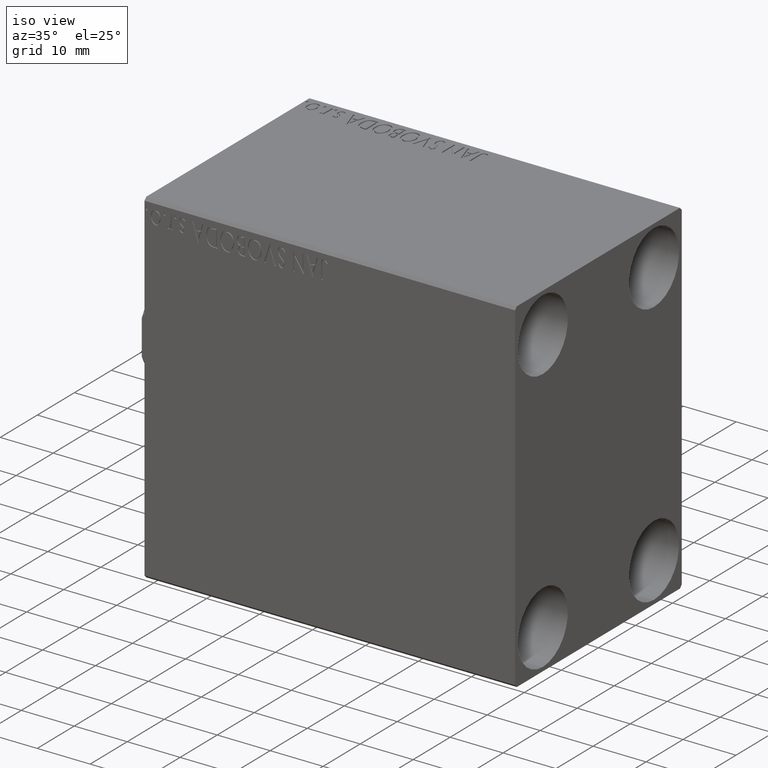
[diagram: clean part render]
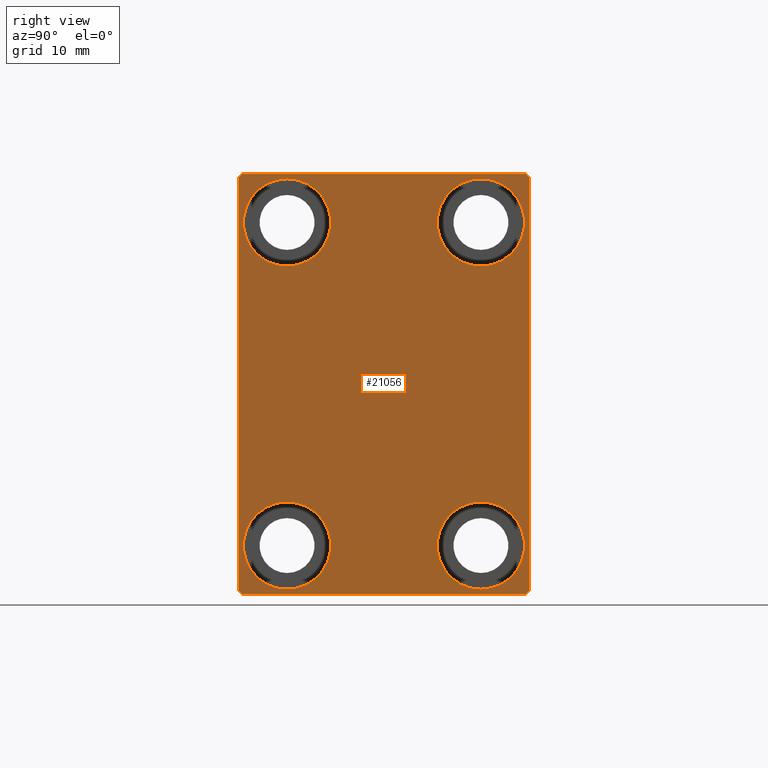
[diagram: tour spotlight — one face highlighted and labeled with its STEP entity id]
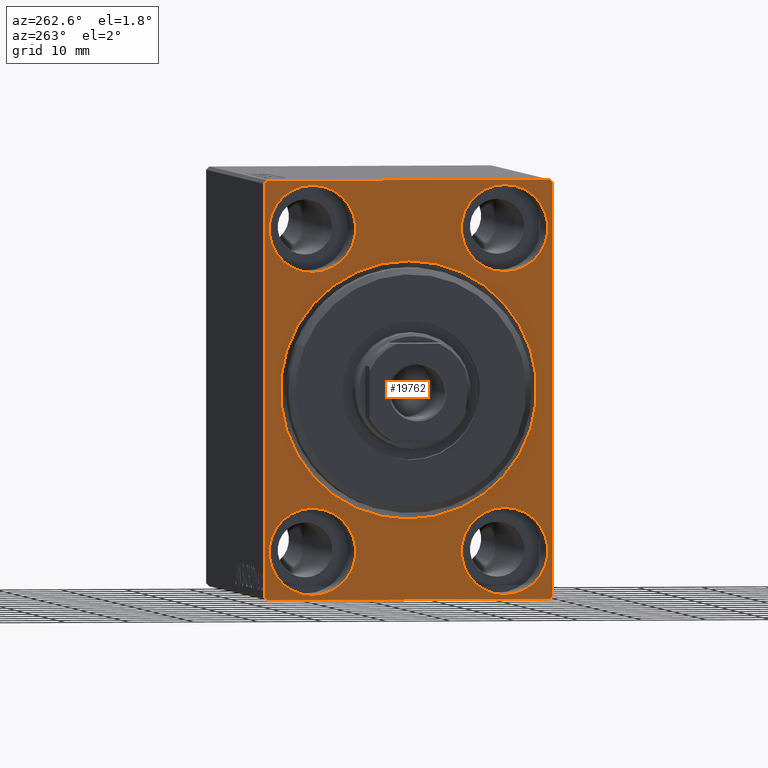
[diagram: tour spotlight — one face highlighted and labeled with its STEP entity id]
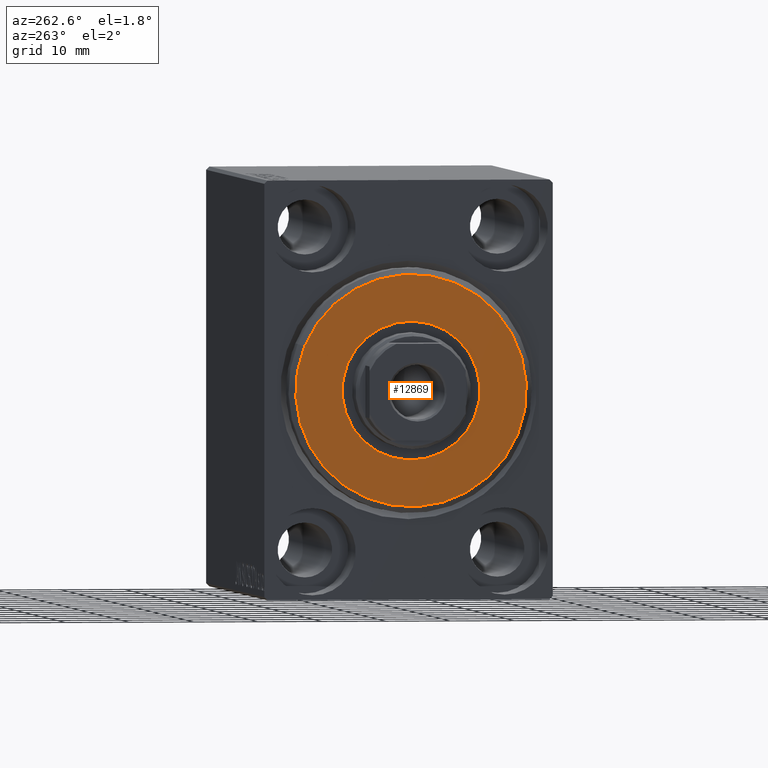
[diagram: tour spotlight — one face highlighted and labeled with its STEP entity id]
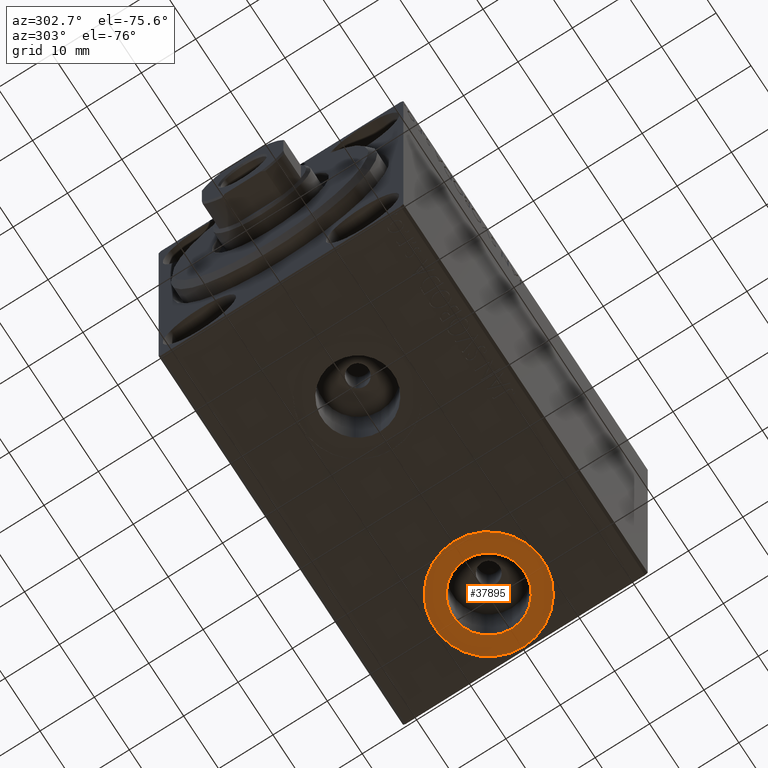
[diagram: tour spotlight — one face highlighted and labeled with its STEP entity id]
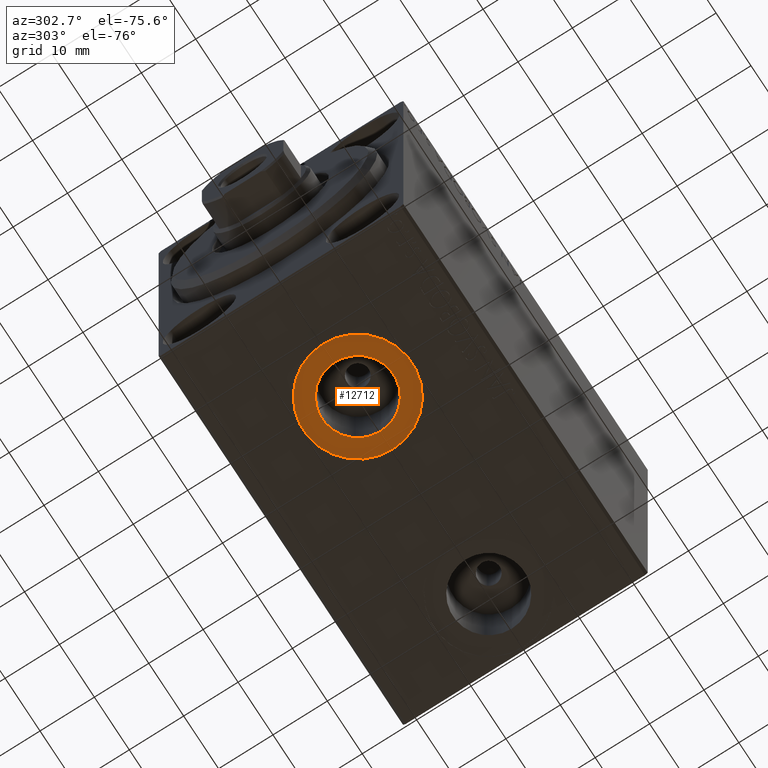
[diagram: tour spotlight — one face highlighted and labeled with its STEP entity id]
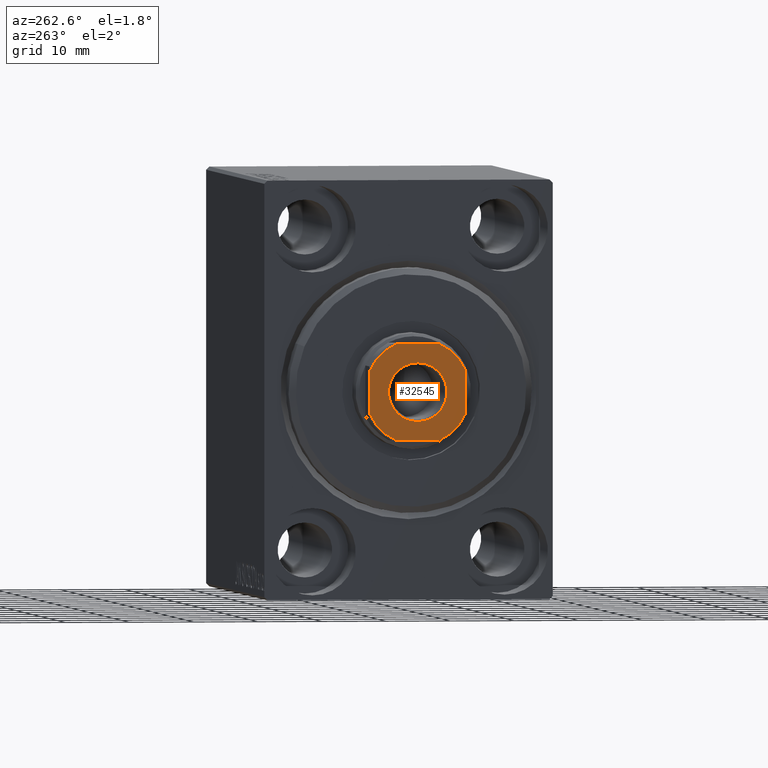
[diagram: tour spotlight — one face highlighted and labeled with its STEP entity id]
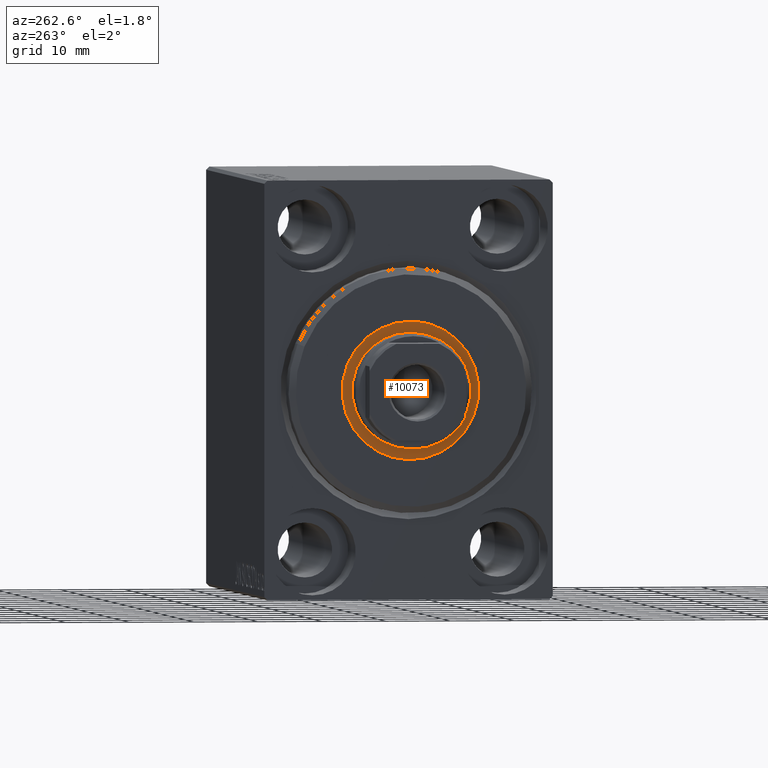
[diagram: tour spotlight — one face highlighted and labeled with its STEP entity id]
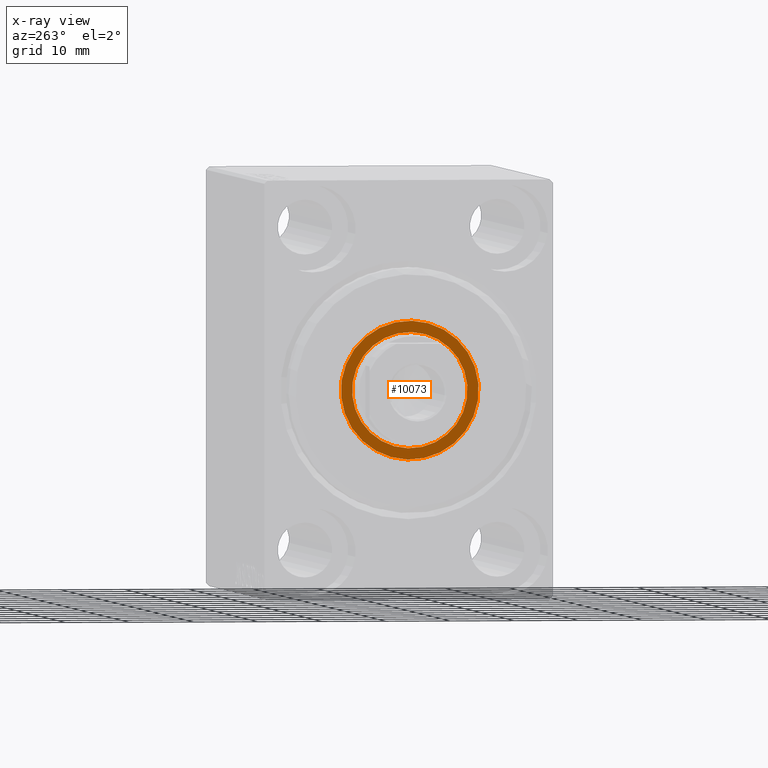
[diagram: x-ray of the same camera — body ghosted, this tour face saturated]
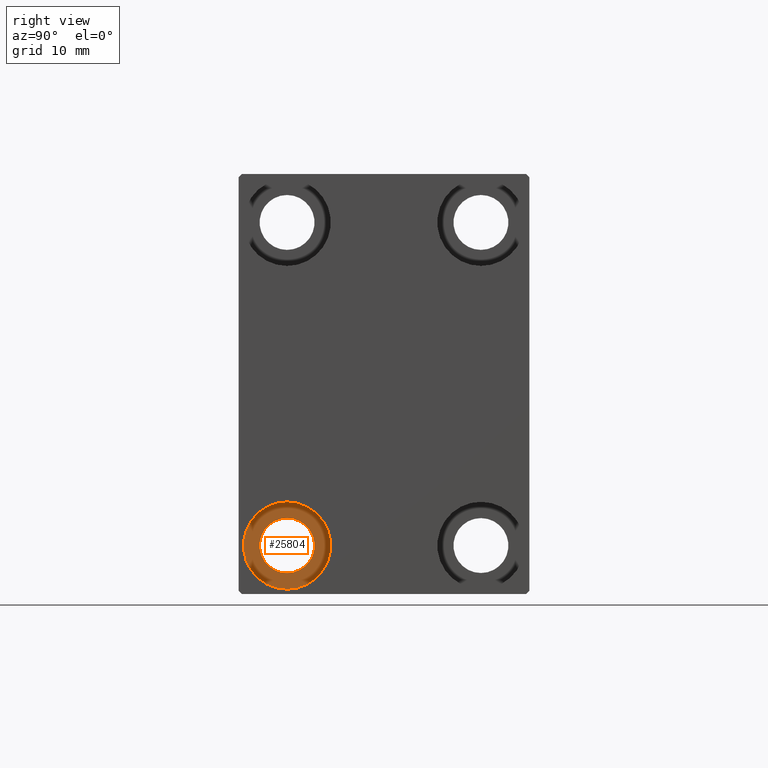
[diagram: tour spotlight — one face highlighted and labeled with its STEP entity id]
A machine part: a face-by-face anatomy tour. The part has 862 B-rep faces; the first image is the clean iso view, then the 8 largest visible faces are spotlighted one at a time (largest first), each with its STEP entity span.

Face 1 — right view, entity #21056. In plain terms, the highlighted planar face has unit normal (1, 0, 0).
Definition (entity closure, byte-faithful):
#236 = CIRCLE ( 'NONE', #6588, 6.749999999999999112 ) ;
#499 = CARTESIAN_POINT ( 'NONE',  ( 70.00000000000000000, -22.00000000000002132, -32.50000000000000711 ) ) ;
#506 = CARTESIAN_POINT ( 'NONE',  ( 70.00000000000000000, 14.99999999999999645, -25.00000000000000000 ) ) ;
#721 = LINE ( 'NONE', #14502, #13709 ) ;
#780 = FACE_BOUND ( 'NONE', #6682, .T. ) ;
#943 = CARTESIAN_POINT ( 'NONE',  ( 70.00000000000000000, 15.00000000000000355, 25.00000000000000000 ) ) ;
#1001 = PLANE ( 'NONE',  #43733 ) ;
#1734 = DIRECTION ( 'NONE',  ( 0.000000000000000000, 0.000000000000000000, 1.000000000000000000 ) ) ;
#2001 = VERTEX_POINT ( 'NONE', #7682 ) ;
#2647 = EDGE_CURVE ( 'NONE', #13547, #6496, #42693, .T. ) ;
#3895 = EDGE_CURVE ( 'NONE', #20665, #5517, #236, .T. ) ;
#4330 = DIRECTION ( 'NONE',  ( 0.000000000000000000, 0.000000000000000000, -1.000000000000000000 ) ) ;
#4336 = AXIS2_PLACEMENT_3D ( 'NONE', #43423, #30076, #23391 ) ;
#4561 = EDGE_CURVE ( 'NONE', #12502, #2001, #721, .T. ) ;
#4973 = FACE_BOUND ( 'NONE', #24564, .T. ) ;
#5517 = VERTEX_POINT ( 'NONE', #21365 ) ;
#5822 = CIRCLE ( 'NONE', #42767, 6.749999999999999112 ) ;
#5992 = DIRECTION ( 'NONE',  ( -1.000000000000000000, -0.000000000000000000, -0.000000000000000000 ) ) ;
#6144 = EDGE_CURVE ( 'NONE', #38100, #33972, #15879, .T. ) ;
#6496 = VERTEX_POINT ( 'NONE', #36739 ) ;
#6588 = AXIS2_PLACEMENT_3D ( 'NONE', #16231, #5992, #26700 ) ;
#6682 = EDGE_LOOP ( 'NONE', ( #30456, #24504 ) ) ;
#6789 = LINE ( 'NONE', #13460, #27593 ) ;
#6869 = VERTEX_POINT ( 'NONE', #20546 ) ;
#6942 = DIRECTION ( 'NONE',  ( 0.000000000000000000, 0.000000000000000000, 1.000000000000000000 ) ) ;
#7113 = VERTEX_POINT ( 'NONE', #11452 ) ;
#7264 = ORIENTED_EDGE ( 'NONE', *, *, #18009, .T. ) ;
#7682 = CARTESIAN_POINT ( 'NONE',  ( 70.00000000000000000, -21.99999999999999289, 32.49999999999999289 ) ) ;
#7708 = ORIENTED_EDGE ( 'NONE', *, *, #6144, .T. ) ;
#8658 = CARTESIAN_POINT ( 'NONE',  ( 70.00000000000000000, -27.25000000000000000, 27.25000000000000000 ) ) ;
#9121 = CARTESIAN_POINT ( 'NONE',  ( 70.00000000000000000, 14.99999999999999645, -18.25000000000000355 ) ) ;
#9206 = DIRECTION ( 'NONE',  ( -1.000000000000000000, -0.000000000000000000, -0.000000000000000000 ) ) ;
#9421 = CARTESIAN_POINT ( 'NONE',  ( 70.00000000000000000, 21.99999999999999289, 32.50000000000000000 ) ) ;
#9478 = DIRECTION ( 'NONE',  ( -1.000000000000000000, -0.000000000000000000, -0.000000000000000000 ) ) ;
#10711 = EDGE_CURVE ( 'NONE', #43703, #24170, #23003, .T. ) ;
#11246 = ORIENTED_EDGE ( 'NONE', *, *, #10711, .T. ) ;
#11452 = CARTESIAN_POINT ( 'NONE',  ( 70.00000000000000000, -22.50000000000000711, -32.00000000000000711 ) ) ;
#11641 = DIRECTION ( 'NONE',  ( 1.000000000000000000, 0.000000000000000000, 0.000000000000000000 ) ) ;
#11936 = ORIENTED_EDGE ( 'NONE', *, *, #20798, .T. ) ;
#12502 = VERTEX_POINT ( 'NONE', #9421 ) ;
#12669 = AXIS2_PLACEMENT_3D ( 'NONE', #506, #17401, #6942 ) ;
#13097 = CARTESIAN_POINT ( 'NONE',  ( 70.00000000000000000, -27.25000000000032330, -27.24999999999957012 ) ) ;
#13114 = CARTESIAN_POINT ( 'NONE',  ( 70.00000000000000000, -15.00000000000000355, -18.25000000000000355 ) ) ;
#13180 = ORIENTED_EDGE ( 'NONE', *, *, #27112, .T. ) ;
#13437 = ORIENTED_EDGE ( 'NONE', *, *, #39195, .T. ) ;
#13460 = CARTESIAN_POINT ( 'NONE',  ( 70.00000000000000000, 27.25000000000014921, 27.24999999999976907 ) ) ;
#13547 = VERTEX_POINT ( 'NONE', #36302 ) ;
#13709 = VECTOR ( 'NONE', #35152, 1000.000000000000000 ) ;
#14074 = CARTESIAN_POINT ( 'NONE',  ( 70.00000000000000000, 22.00000000000001421, -32.50000000000000711 ) ) ;
#14376 = VECTOR ( 'NONE', #43025, 1000.000000000000000 ) ;
#14502 = CARTESIAN_POINT ( 'NONE',  ( 70.00000000000000000, 22.49999999999999289, 32.50000000000000000 ) ) ;
#14777 = FACE_BOUND ( 'NONE', #34988, .T. ) ;
#15176 = DIRECTION ( 'NONE',  ( -1.000000000000000000, -0.000000000000000000, -0.000000000000000000 ) ) ;
#15202 = CARTESIAN_POINT ( 'NONE',  ( 70.00000000000000000, 0.000000000000000000, 0.000000000000000000 ) ) ;
#15879 = LINE ( 'NONE', #43235, #14376 ) ;
#16175 = ORIENTED_EDGE ( 'NONE', *, *, #26603, .T. ) ;
#16231 = CARTESIAN_POINT ( 'NONE',  ( 70.00000000000000000, -15.00000000000000355, -25.00000000000000000 ) ) ;
#16652 = DIRECTION ( 'NONE',  ( 0.000000000000000000, 0.000000000000000000, 1.000000000000000000 ) ) ;
#17401 = DIRECTION ( 'NONE',  ( -1.000000000000000000, -0.000000000000000000, -0.000000000000000000 ) ) ;
#17670 = CIRCLE ( 'NONE', #12669, 6.749999999999999112 ) ;
#18003 = CARTESIAN_POINT ( 'NONE',  ( 70.00000000000000000, 14.99999999999999645, -31.75000000000000000 ) ) ;
#18009 = EDGE_CURVE ( 'NONE', #6496, #13547, #26630, .T. ) ;
#18717 = AXIS2_PLACEMENT_3D ( 'NONE', #36140, #9206, #22791 ) ;
#18959 = ORIENTED_EDGE ( 'NONE', *, *, #31922, .T. ) ;
#19827 = DIRECTION ( 'NONE',  ( -0.000000000000000000, 0.7071067811865376918, 0.7071067811865573427 ) ) ;
#20546 = CARTESIAN_POINT ( 'NONE',  ( 70.00000000000000000, 22.49999999999999289, 31.99999999999999289 ) ) ;
#20665 = VERTEX_POINT ( 'NONE', #13114 ) ;
#20798 = EDGE_CURVE ( 'NONE', #35334, #6869, #28620, .T. ) ;
#21056 = ADVANCED_FACE ( 'NONE', ( #24581, #4973, #14777, #780, #21233 ), #1001, .T. ) ;
#21233 = FACE_OUTER_BOUND ( 'NONE', #27920, .T. ) ;
#21365 = CARTESIAN_POINT ( 'NONE',  ( 70.00000000000000000, -15.00000000000000355, -31.75000000000000000 ) ) ;
#21834 = DIRECTION ( 'NONE',  ( -1.000000000000000000, -0.000000000000000000, -0.000000000000000000 ) ) ;
#21978 = CARTESIAN_POINT ( 'NONE',  ( 70.00000000000000000, -14.99999999999999645, 25.00000000000000000 ) ) ;
#22772 = VECTOR ( 'NONE', #19827, 1000.000000000000114 ) ;
#22791 = DIRECTION ( 'NONE',  ( 0.000000000000000000, 0.000000000000000000, 1.000000000000000000 ) ) ;
#23003 = CIRCLE ( 'NONE', #18717, 6.749999999999999112 ) ;
#23107 = CARTESIAN_POINT ( 'NONE',  ( 70.00000000000000000, 14.99999999999999645, -25.00000000000000000 ) ) ;
#23291 = VERTEX_POINT ( 'NONE', #9121 ) ;
#23391 = DIRECTION ( 'NONE',  ( 0.000000000000000000, 0.000000000000000000, 1.000000000000000000 ) ) ;
#24170 = VERTEX_POINT ( 'NONE', #28167 ) ;
#24224 = CARTESIAN_POINT ( 'NONE',  ( 70.00000000000000000, -22.50000000000000711, 32.49999999999999289 ) ) ;
#24406 = ORIENTED_EDGE ( 'NONE', *, *, #4561, .T. ) ;
#24494 = EDGE_CURVE ( 'NONE', #7113, #38100, #33159, .T. ) ;
#24504 = ORIENTED_EDGE ( 'NONE', *, *, #3895, .T. ) ;
#24564 = EDGE_LOOP ( 'NONE', ( #13437, #11246 ) ) ;
#24581 = FACE_BOUND ( 'NONE', #38162, .T. ) ;
#25285 = ORIENTED_EDGE ( 'NONE', *, *, #36091, .T. ) ;
#25571 = VECTOR ( 'NONE', #34465, 1000.000000000000000 ) ;
#26603 = EDGE_CURVE ( 'NONE', #6869, #12502, #6789, .T. ) ;
#26624 = VERTEX_POINT ( 'NONE', #41062 ) ;
#26630 = CIRCLE ( 'NONE', #30930, 6.749999999999999112 ) ;
#26700 = DIRECTION ( 'NONE',  ( 0.000000000000000000, 0.000000000000000000, 1.000000000000000000 ) ) ;
#26975 = AXIS2_PLACEMENT_3D ( 'NONE', #29083, #9478, #29302 ) ;
#27112 = EDGE_CURVE ( 'NONE', #2001, #26624, #35814, .T. ) ;
#27593 = VECTOR ( 'NONE', #40624, 999.9999999999998863 ) ;
#27772 = CARTESIAN_POINT ( 'NONE',  ( 70.00000000000000000, 22.50000000000000000, -32.00000000000002132 ) ) ;
#27920 = EDGE_LOOP ( 'NONE', ( #24406, #13180, #43016, #41561, #7708, #40439, #11936, #16175 ) ) ;
#28085 = DIRECTION ( 'NONE',  ( 0.000000000000000000, 0.000000000000000000, 1.000000000000000000 ) ) ;
#28167 = CARTESIAN_POINT ( 'NONE',  ( 70.00000000000000000, -14.99999999999999645, 18.25000000000000355 ) ) ;
#28378 = CIRCLE ( 'NONE', #26975, 6.749999999999999112 ) ;
#28620 = LINE ( 'NONE', #32399, #40936 ) ;
#28832 = DIRECTION ( 'NONE',  ( 0.000000000000000000, -1.067522139062650425E-16, 1.000000000000000000 ) ) ;
#29083 = CARTESIAN_POINT ( 'NONE',  ( 70.00000000000000000, -15.00000000000000355, -25.00000000000000000 ) ) ;
#29302 = DIRECTION ( 'NONE',  ( 0.000000000000000000, 0.000000000000000000, 1.000000000000000000 ) ) ;
#29827 = AXIS2_PLACEMENT_3D ( 'NONE', #23107, #15176, #16652 ) ;
#30076 = DIRECTION ( 'NONE',  ( -1.000000000000000000, -0.000000000000000000, -0.000000000000000000 ) ) ;
#30295 = LINE ( 'NONE', #43632, #22772 ) ;
#30456 = ORIENTED_EDGE ( 'NONE', *, *, #30857, .T. ) ;
#30857 = EDGE_CURVE ( 'NONE', #5517, #20665, #28378, .T. ) ;
#30930 = AXIS2_PLACEMENT_3D ( 'NONE', #943, #21834, #28085 ) ;
#31922 = EDGE_CURVE ( 'NONE', #38484, #23291, #17670, .T. ) ;
#32399 = CARTESIAN_POINT ( 'NONE',  ( 70.00000000000000000, 22.50000000000000000, -32.50000000000000711 ) ) ;
#32721 = CARTESIAN_POINT ( 'NONE',  ( 70.00000000000000000, -14.99999999999999645, 31.75000000000000000 ) ) ;
#33159 = LINE ( 'NONE', #13097, #36028 ) ;
#33972 = VERTEX_POINT ( 'NONE', #14074 ) ;
#34465 = DIRECTION ( 'NONE',  ( 0.000000000000000000, 0.000000000000000000, -1.000000000000000000 ) ) ;
#34826 = CIRCLE ( 'NONE', #29827, 6.749999999999999112 ) ;
#34988 = EDGE_LOOP ( 'NONE', ( #43996, #7264 ) ) ;
#35152 = DIRECTION ( 'NONE',  ( 0.000000000000000000, -1.000000000000000000, -1.541976423090495387E-16 ) ) ;
#35334 = VERTEX_POINT ( 'NONE', #27772 ) ;
#35395 = VECTOR ( 'NONE', #43141, 1000.000000000000114 ) ;
#35814 = LINE ( 'NONE', #8658, #35395 ) ;
#36028 = VECTOR ( 'NONE', #36472, 1000.000000000000000 ) ;
#36091 = EDGE_CURVE ( 'NONE', #23291, #38484, #34826, .T. ) ;
#36140 = CARTESIAN_POINT ( 'NONE',  ( 70.00000000000000000, -14.99999999999999645, 25.00000000000000000 ) ) ;
#36275 = EDGE_CURVE ( 'NONE', #26624, #7113, #40694, .T. ) ;
#36302 = CARTESIAN_POINT ( 'NONE',  ( 70.00000000000000000, 15.00000000000000355, 18.25000000000000355 ) ) ;
#36472 = DIRECTION ( 'NONE',  ( -0.000000000000000000, 0.7071067811865378028, -0.7071067811865573427 ) ) ;
#36739 = CARTESIAN_POINT ( 'NONE',  ( 70.00000000000000000, 15.00000000000000355, 31.75000000000000000 ) ) ;
#38100 = VERTEX_POINT ( 'NONE', #499 ) ;
#38162 = EDGE_LOOP ( 'NONE', ( #18959, #25285 ) ) ;
#38484 = VERTEX_POINT ( 'NONE', #18003 ) ;
#39195 = EDGE_CURVE ( 'NONE', #24170, #43703, #5822, .T. ) ;
#39542 = DIRECTION ( 'NONE',  ( -1.000000000000000000, -0.000000000000000000, -0.000000000000000000 ) ) ;
#40439 = ORIENTED_EDGE ( 'NONE', *, *, #43371, .T. ) ;
#40624 = DIRECTION ( 'NONE',  ( -0.000000000000000000, -0.7071067811865425767, 0.7071067811865525687 ) ) ;
#40694 = LINE ( 'NONE', #24224, #25571 ) ;
#40936 = VECTOR ( 'NONE', #28832, 1000.000000000000000 ) ;
#41062 = CARTESIAN_POINT ( 'NONE',  ( 70.00000000000000000, -22.50000000000000711, 31.99999999999999289 ) ) ;
#41561 = ORIENTED_EDGE ( 'NONE', *, *, #24494, .T. ) ;
#42693 = CIRCLE ( 'NONE', #4336, 6.749999999999999112 ) ;
#42767 = AXIS2_PLACEMENT_3D ( 'NONE', #21978, #39542, #1734 ) ;
#43016 = ORIENTED_EDGE ( 'NONE', *, *, #36275, .T. ) ;
#43025 = DIRECTION ( 'NONE',  ( 0.000000000000000000, 1.000000000000000000, 0.000000000000000000 ) ) ;
#43141 = DIRECTION ( 'NONE',  ( 0.000000000000000000, -0.7071067811865474617, -0.7071067811865474617 ) ) ;
#43235 = CARTESIAN_POINT ( 'NONE',  ( 70.00000000000000000, -22.50000000000000711, -32.50000000000000711 ) ) ;
#43371 = EDGE_CURVE ( 'NONE', #33972, #35334, #30295, .T. ) ;
#43423 = CARTESIAN_POINT ( 'NONE',  ( 70.00000000000000000, 15.00000000000000355, 25.00000000000000000 ) ) ;
#43632 = CARTESIAN_POINT ( 'NONE',  ( 70.00000000000000000, 27.25000000000032685, -27.24999999999957012 ) ) ;
#43703 = VERTEX_POINT ( 'NONE', #32721 ) ;
#43733 = AXIS2_PLACEMENT_3D ( 'NONE', #15202, #11641, #4330 ) ;
#43996 = ORIENTED_EDGE ( 'NONE', *, *, #2647, .T. ) ;

Face 2 — auxiliary view, entity #19762. In plain terms, the highlighted planar face has unit normal (1, 0, 0).
Definition (entity closure, byte-faithful):
#555 = EDGE_LOOP ( 'NONE', ( #9155, #4836 ) ) ;
#567 = CARTESIAN_POINT ( 'NONE',  ( 0.000000000000000000, 0.000000000000000000, 0.000000000000000000 ) ) ;
#1391 = ORIENTED_EDGE ( 'NONE', *, *, #32685, .F. ) ;
#1393 = DIRECTION ( 'NONE',  ( 0.000000000000000000, 0.000000000000000000, -1.000000000000000000 ) ) ;
#2247 = CARTESIAN_POINT ( 'NONE',  ( 0.000000000000000000, 15.00000000000000355, 31.75000000000000000 ) ) ;
#2287 = EDGE_CURVE ( 'NONE', #34252, #3585, #41032, .T. ) ;
#2397 = VERTEX_POINT ( 'NONE', #24559 ) ;
#2451 = CARTESIAN_POINT ( 'NONE',  ( 0.000000000000000000, -22.50000000000000711, 31.99999999999999289 ) ) ;
#2505 = VERTEX_POINT ( 'NONE', #7861 ) ;
#2740 = EDGE_CURVE ( 'NONE', #28645, #2505, #34201, .T. ) ;
#2942 = LINE ( 'NONE', #42774, #7661 ) ;
#3297 = ORIENTED_EDGE ( 'NONE', *, *, #28171, .T. ) ;
#3538 = EDGE_CURVE ( 'NONE', #40539, #36195, #33405, .T. ) ;
#3585 = VERTEX_POINT ( 'NONE', #6932 ) ;
#3821 = CARTESIAN_POINT ( 'NONE',  ( 0.000000000000000000, 14.99999999999999645, -25.00000000000000000 ) ) ;
#3827 = DIRECTION ( 'NONE',  ( -1.000000000000000000, 0.000000000000000000, 0.000000000000000000 ) ) ;
#3978 = DIRECTION ( 'NONE',  ( 1.000000000000000000, 0.000000000000000000, 0.000000000000000000 ) ) ;
#4082 = AXIS2_PLACEMENT_3D ( 'NONE', #22353, #11885, #38610 ) ;
#4639 = CARTESIAN_POINT ( 'NONE',  ( 0.000000000000000000, 22.50000000000000000, -32.00000000000002132 ) ) ;
#4774 = VECTOR ( 'NONE', #28178, 999.9999999999998863 ) ;
#4836 = ORIENTED_EDGE ( 'NONE', *, *, #13991, .T. ) ;
#4958 = AXIS2_PLACEMENT_3D ( 'NONE', #16079, #33015, #13390 ) ;
#5841 = CARTESIAN_POINT ( 'NONE',  ( 0.000000000000000000, -14.99999999999999645, 18.25000000000000355 ) ) ;
#5976 = CARTESIAN_POINT ( 'NONE',  ( 0.000000000000000000, 14.99999999999999645, -25.00000000000000000 ) ) ;
#6017 = VERTEX_POINT ( 'NONE', #18345 ) ;
#6569 = DIRECTION ( 'NONE',  ( -1.000000000000000000, 0.000000000000000000, 0.000000000000000000 ) ) ;
#6848 = EDGE_CURVE ( 'NONE', #36195, #40539, #26450, .T. ) ;
#6932 = CARTESIAN_POINT ( 'NONE',  ( 0.000000000000000000, -22.50000000000000711, -32.00000000000000711 ) ) ;
#6976 = DIRECTION ( 'NONE',  ( -1.000000000000000000, 0.000000000000000000, 0.000000000000000000 ) ) ;
#7006 = PLANE ( 'NONE',  #10327 ) ;
#7093 = VERTEX_POINT ( 'NONE', #30183 ) ;
#7415 = CARTESIAN_POINT ( 'NONE',  ( 0.000000000000000000, -22.50000000000000711, 31.99999999999999289 ) ) ;
#7661 = VECTOR ( 'NONE', #32783, 1000.000000000000000 ) ;
#7861 = CARTESIAN_POINT ( 'NONE',  ( 0.000000000000000000, 14.99999999999999645, -18.25000000000000355 ) ) ;
#7887 = DIRECTION ( 'NONE',  ( 1.000000000000000000, 0.000000000000000000, 0.000000000000000000 ) ) ;
#8448 = DIRECTION ( 'NONE',  ( -0.000000000000000000, 0.7071067811865474617, 0.7071067811865474617 ) ) ;
#8815 = ORIENTED_EDGE ( 'NONE', *, *, #24933, .T. ) ;
#9015 = CIRCLE ( 'NONE', #4082, 6.749999999999999112 ) ;
#9155 = ORIENTED_EDGE ( 'NONE', *, *, #38604, .T. ) ;
#10238 = DIRECTION ( 'NONE',  ( 0.000000000000000000, -1.067522139062650425E-16, 1.000000000000000000 ) ) ;
#10327 = AXIS2_PLACEMENT_3D ( 'NONE', #567, #7887, #17243 ) ;
#10628 = CARTESIAN_POINT ( 'NONE',  ( 0.000000000000000000, -21.99999999999999289, 32.49999999999999289 ) ) ;
#10653 = ORIENTED_EDGE ( 'NONE', *, *, #2740, .F. ) ;
#10854 = ORIENTED_EDGE ( 'NONE', *, *, #14492, .T. ) ;
#10997 = FACE_BOUND ( 'NONE', #11410, .T. ) ;
#11295 = DIRECTION ( 'NONE',  ( 0.000000000000000000, -0.7071067811865376918, -0.7071067811865573427 ) ) ;
#11303 = CIRCLE ( 'NONE', #41179, 6.749999999999999112 ) ;
#11410 = EDGE_LOOP ( 'NONE', ( #16191, #20753 ) ) ;
#11716 = AXIS2_PLACEMENT_3D ( 'NONE', #17542, #3978, #34680 ) ;
#11885 = DIRECTION ( 'NONE',  ( -1.000000000000000000, 0.000000000000000000, 0.000000000000000000 ) ) ;
#12439 = DIRECTION ( 'NONE',  ( 0.000000000000000000, 0.000000000000000000, 1.000000000000000000 ) ) ;
#12488 = CIRCLE ( 'NONE', #35928, 6.749999999999999112 ) ;
#13202 = DIRECTION ( 'NONE',  ( -0.000000000000000000, -0.7071067811865378028, 0.7071067811865573427 ) ) ;
#13390 = DIRECTION ( 'NONE',  ( 0.000000000000000000, 0.000000000000000000, 1.000000000000000000 ) ) ;
#13708 = CARTESIAN_POINT ( 'NONE',  ( 0.000000000000000000, 22.00000000000001421, -32.50000000000000711 ) ) ;
#13991 = EDGE_CURVE ( 'NONE', #2397, #25583, #30933, .T. ) ;
#14124 = CARTESIAN_POINT ( 'NONE',  ( 0.000000000000000000, 22.49999999999999289, 31.99999999999999289 ) ) ;
#14492 = EDGE_CURVE ( 'NONE', #37581, #30654, #25158, .T. ) ;
#14516 = CARTESIAN_POINT ( 'NONE',  ( 0.000000000000000000, 14.99999999999999645, -31.75000000000000000 ) ) ;
#15577 = VERTEX_POINT ( 'NONE', #41761 ) ;
#16079 = CARTESIAN_POINT ( 'NONE',  ( 0.000000000000000000, 15.00000000000000355, 25.00000000000000000 ) ) ;
#16184 = DIRECTION ( 'NONE',  ( 1.000000000000000000, 0.000000000000000000, 0.000000000000000000 ) ) ;
#16191 = ORIENTED_EDGE ( 'NONE', *, *, #35519, .F. ) ;
#16496 = ORIENTED_EDGE ( 'NONE', *, *, #25087, .F. ) ;
#16932 = VECTOR ( 'NONE', #10238, 1000.000000000000000 ) ;
#17243 = DIRECTION ( 'NONE',  ( 0.000000000000000000, 0.000000000000000000, -1.000000000000000000 ) ) ;
#17467 = FACE_OUTER_BOUND ( 'NONE', #24489, .T. ) ;
#17542 = CARTESIAN_POINT ( 'NONE',  ( 0.000000000000000000, 0.000000000000000000, 0.000000000000000000 ) ) ;
#18107 = VERTEX_POINT ( 'NONE', #2247 ) ;
#18345 = CARTESIAN_POINT ( 'NONE',  ( 0.000000000000000000, 22.50000000000000000, -32.00000000000002132 ) ) ;
#18465 = EDGE_CURVE ( 'NONE', #15577, #30654, #43991, .T. ) ;
#18713 = CARTESIAN_POINT ( 'NONE',  ( 0.000000000000000000, -22.00000000000002132, -32.50000000000000711 ) ) ;
#18730 = CARTESIAN_POINT ( 'NONE',  ( 0.000000000000000000, -14.99999999999999645, 31.75000000000000000 ) ) ;
#19762 = ADVANCED_FACE ( 'NONE', ( #27706, #34825, #41499, #28149, #10997, #17467 ), #7006, .F. ) ;
#19775 = VERTEX_POINT ( 'NONE', #14124 ) ;
#19877 = AXIS2_PLACEMENT_3D ( 'NONE', #3821, #31624, #34743 ) ;
#19881 = DIRECTION ( 'NONE',  ( 0.000000000000000000, 0.000000000000000000, 1.000000000000000000 ) ) ;
#20146 = DIRECTION ( 'NONE',  ( 0.000000000000000000, 0.000000000000000000, 1.000000000000000000 ) ) ;
#20282 = CARTESIAN_POINT ( 'NONE',  ( 0.000000000000000000, 0.000000000000000000, 20.00000000000000355 ) ) ;
#20606 = LINE ( 'NONE', #23953, #4774 ) ;
#20753 = ORIENTED_EDGE ( 'NONE', *, *, #21067, .F. ) ;
#21067 = EDGE_CURVE ( 'NONE', #30547, #7093, #12488, .T. ) ;
#21672 = DIRECTION ( 'NONE',  ( 0.000000000000000000, 0.000000000000000000, 1.000000000000000000 ) ) ;
#21852 = CARTESIAN_POINT ( 'NONE',  ( 0.000000000000000000, -22.50000000000000711, 32.49999999999999289 ) ) ;
#22096 = ORIENTED_EDGE ( 'NONE', *, *, #6848, .F. ) ;
#22353 = CARTESIAN_POINT ( 'NONE',  ( 0.000000000000000000, 15.00000000000000355, 25.00000000000000000 ) ) ;
#22407 = ORIENTED_EDGE ( 'NONE', *, *, #30570, .F. ) ;
#23224 = CARTESIAN_POINT ( 'NONE',  ( 0.000000000000000000, -22.00000000000002132, -32.50000000000000711 ) ) ;
#23403 = ORIENTED_EDGE ( 'NONE', *, *, #2287, .T. ) ;
#23953 = CARTESIAN_POINT ( 'NONE',  ( 0.000000000000000000, 21.99999999999999289, 32.50000000000000000 ) ) ;
#24489 = EDGE_LOOP ( 'NONE', ( #34846, #10854, #24667, #8815, #36540, #3297, #31023, #23403 ) ) ;
#24559 = CARTESIAN_POINT ( 'NONE',  ( 0.000000000000000000, 2.449293598294706907E-15, -20.00000000000000355 ) ) ;
#24667 = ORIENTED_EDGE ( 'NONE', *, *, #18465, .F. ) ;
#24922 = VERTEX_POINT ( 'NONE', #13708 ) ;
#24933 = EDGE_CURVE ( 'NONE', #15577, #19775, #20606, .T. ) ;
#25087 = EDGE_CURVE ( 'NONE', #18107, #38402, #9015, .T. ) ;
#25158 = LINE ( 'NONE', #7415, #42986 ) ;
#25491 = EDGE_CURVE ( 'NONE', #34252, #24922, #2942, .T. ) ;
#25583 = VERTEX_POINT ( 'NONE', #20282 ) ;
#25802 = CARTESIAN_POINT ( 'NONE',  ( 0.000000000000000000, -15.00000000000000355, -31.75000000000000000 ) ) ;
#26174 = VECTOR ( 'NONE', #11295, 1000.000000000000114 ) ;
#26450 = CIRCLE ( 'NONE', #27183, 6.749999999999999112 ) ;
#26867 = CARTESIAN_POINT ( 'NONE',  ( 0.000000000000000000, 0.000000000000000000, 0.000000000000000000 ) ) ;
#27055 = CARTESIAN_POINT ( 'NONE',  ( 0.000000000000000000, -15.00000000000000355, -25.00000000000000000 ) ) ;
#27183 = AXIS2_PLACEMENT_3D ( 'NONE', #40807, #6976, #19881 ) ;
#27578 = EDGE_LOOP ( 'NONE', ( #22096, #39480 ) ) ;
#27706 = FACE_BOUND ( 'NONE', #555, .T. ) ;
#28149 = FACE_BOUND ( 'NONE', #31568, .T. ) ;
#28171 = EDGE_CURVE ( 'NONE', #6017, #24922, #35125, .T. ) ;
#28178 = DIRECTION ( 'NONE',  ( -0.000000000000000000, 0.7071067811865425767, -0.7071067811865525687 ) ) ;
#28645 = VERTEX_POINT ( 'NONE', #14516 ) ;
#28869 = EDGE_CURVE ( 'NONE', #6017, #19775, #40741, .T. ) ;
#28915 = DIRECTION ( 'NONE',  ( -1.000000000000000000, 0.000000000000000000, 0.000000000000000000 ) ) ;
#29482 = VECTOR ( 'NONE', #30204, 1000.000000000000000 ) ;
#29563 = EDGE_CURVE ( 'NONE', #37581, #3585, #34780, .T. ) ;
#30183 = CARTESIAN_POINT ( 'NONE',  ( 0.000000000000000000, -15.00000000000000355, -18.25000000000000355 ) ) ;
#30204 = DIRECTION ( 'NONE',  ( 0.000000000000000000, -1.000000000000000000, -1.541976423090495387E-16 ) ) ;
#30547 = VERTEX_POINT ( 'NONE', #25802 ) ;
#30570 = EDGE_CURVE ( 'NONE', #2505, #28645, #34772, .T. ) ;
#30637 = VECTOR ( 'NONE', #13202, 1000.000000000000000 ) ;
#30654 = VERTEX_POINT ( 'NONE', #10628 ) ;
#30933 = CIRCLE ( 'NONE', #11716, 20.00000000000000355 ) ;
#31023 = ORIENTED_EDGE ( 'NONE', *, *, #25491, .F. ) ;
#31260 = DIRECTION ( 'NONE',  ( -1.000000000000000000, 0.000000000000000000, 0.000000000000000000 ) ) ;
#31568 = EDGE_LOOP ( 'NONE', ( #16496, #1391 ) ) ;
#31624 = DIRECTION ( 'NONE',  ( -1.000000000000000000, 0.000000000000000000, 0.000000000000000000 ) ) ;
#32685 = EDGE_CURVE ( 'NONE', #38402, #18107, #43319, .T. ) ;
#32783 = DIRECTION ( 'NONE',  ( 0.000000000000000000, 1.000000000000000000, 0.000000000000000000 ) ) ;
#33015 = DIRECTION ( 'NONE',  ( -1.000000000000000000, 0.000000000000000000, 0.000000000000000000 ) ) ;
#33405 = CIRCLE ( 'NONE', #43420, 6.749999999999999112 ) ;
#33627 = CARTESIAN_POINT ( 'NONE',  ( 0.000000000000000000, 22.50000000000000000, -32.50000000000000711 ) ) ;
#33771 = DIRECTION ( 'NONE',  ( 0.000000000000000000, 0.000000000000000000, -1.000000000000000000 ) ) ;
#33871 = CARTESIAN_POINT ( 'NONE',  ( 0.000000000000000000, -14.99999999999999645, 25.00000000000000000 ) ) ;
#34201 = CIRCLE ( 'NONE', #19877, 6.749999999999999112 ) ;
#34252 = VERTEX_POINT ( 'NONE', #18713 ) ;
#34279 = CIRCLE ( 'NONE', #37080, 20.00000000000000355 ) ;
#34316 = DIRECTION ( 'NONE',  ( 0.000000000000000000, 0.000000000000000000, 1.000000000000000000 ) ) ;
#34680 = DIRECTION ( 'NONE',  ( 0.000000000000000000, 0.000000000000000000, -1.000000000000000000 ) ) ;
#34743 = DIRECTION ( 'NONE',  ( 0.000000000000000000, 0.000000000000000000, 1.000000000000000000 ) ) ;
#34772 = CIRCLE ( 'NONE', #41904, 6.749999999999999112 ) ;
#34780 = LINE ( 'NONE', #21852, #40436 ) ;
#34825 = FACE_BOUND ( 'NONE', #38738, .T. ) ;
#34846 = ORIENTED_EDGE ( 'NONE', *, *, #29563, .F. ) ;
#35125 = LINE ( 'NONE', #4639, #26174 ) ;
#35519 = EDGE_CURVE ( 'NONE', #7093, #30547, #11303, .T. ) ;
#35928 = AXIS2_PLACEMENT_3D ( 'NONE', #41495, #31260, #21672 ) ;
#36195 = VERTEX_POINT ( 'NONE', #18730 ) ;
#36540 = ORIENTED_EDGE ( 'NONE', *, *, #28869, .F. ) ;
#36876 = CARTESIAN_POINT ( 'NONE',  ( 0.000000000000000000, 22.49999999999999289, 32.50000000000000000 ) ) ;
#37080 = AXIS2_PLACEMENT_3D ( 'NONE', #26867, #16184, #33771 ) ;
#37581 = VERTEX_POINT ( 'NONE', #2451 ) ;
#38402 = VERTEX_POINT ( 'NONE', #44042 ) ;
#38604 = EDGE_CURVE ( 'NONE', #25583, #2397, #34279, .T. ) ;
#38610 = DIRECTION ( 'NONE',  ( 0.000000000000000000, 0.000000000000000000, 1.000000000000000000 ) ) ;
#38738 = EDGE_LOOP ( 'NONE', ( #22407, #10653 ) ) ;
#39480 = ORIENTED_EDGE ( 'NONE', *, *, #3538, .F. ) ;
#40436 = VECTOR ( 'NONE', #1393, 1000.000000000000000 ) ;
#40539 = VERTEX_POINT ( 'NONE', #5841 ) ;
#40741 = LINE ( 'NONE', #33627, #16932 ) ;
#40807 = CARTESIAN_POINT ( 'NONE',  ( 0.000000000000000000, -14.99999999999999645, 25.00000000000000000 ) ) ;
#41032 = LINE ( 'NONE', #23224, #30637 ) ;
#41179 = AXIS2_PLACEMENT_3D ( 'NONE', #27055, #6569, #20146 ) ;
#41495 = CARTESIAN_POINT ( 'NONE',  ( 0.000000000000000000, -15.00000000000000355, -25.00000000000000000 ) ) ;
#41499 = FACE_BOUND ( 'NONE', #27578, .T. ) ;
#41761 = CARTESIAN_POINT ( 'NONE',  ( 0.000000000000000000, 21.99999999999999289, 32.50000000000000000 ) ) ;
#41904 = AXIS2_PLACEMENT_3D ( 'NONE', #5976, #28915, #12439 ) ;
#42774 = CARTESIAN_POINT ( 'NONE',  ( 0.000000000000000000, -22.50000000000000711, -32.50000000000000711 ) ) ;
#42986 = VECTOR ( 'NONE', #8448, 1000.000000000000114 ) ;
#43319 = CIRCLE ( 'NONE', #4958, 6.749999999999999112 ) ;
#43420 = AXIS2_PLACEMENT_3D ( 'NONE', #33871, #3827, #34316 ) ;
#43991 = LINE ( 'NONE', #36876, #29482 ) ;
#44042 = CARTESIAN_POINT ( 'NONE',  ( 0.000000000000000000, 15.00000000000000355, 18.25000000000000355 ) ) ;

Face 3 — auxiliary view, entity #12869. In plain terms, the highlighted planar face has unit normal (-1, 0, 0).
Definition (entity closure, byte-faithful):
#1298 = DIRECTION ( 'NONE',  ( 0.000000000000000000, 0.000000000000000000, -1.000000000000000000 ) ) ;
#2924 = EDGE_LOOP ( 'NONE', ( #9663, #30402 ) ) ;
#3238 = DIRECTION ( 'NONE',  ( 0.000000000000000000, 0.000000000000000000, -1.000000000000000000 ) ) ;
#4927 = CIRCLE ( 'NONE', #21250, 17.99999999999999645 ) ;
#6412 = DIRECTION ( 'NONE',  ( 0.000000000000000000, 0.000000000000000000, -1.000000000000000000 ) ) ;
#6856 = CARTESIAN_POINT ( 'NONE',  ( 3.000000000000000000, 0.000000000000000000, 0.000000000000000000 ) ) ;
#9663 = ORIENTED_EDGE ( 'NONE', *, *, #27267, .T. ) ;
#9786 = AXIS2_PLACEMENT_3D ( 'NONE', #23904, #30801, #13655 ) ;
#10694 = CARTESIAN_POINT ( 'NONE',  ( 3.000000000000000000, 2.265596578422603002E-15, -17.99999999999999645 ) ) ;
#10851 = DIRECTION ( 'NONE',  ( -1.000000000000000000, 0.000000000000000000, -0.000000000000000000 ) ) ;
#11978 = CARTESIAN_POINT ( 'NONE',  ( 3.000000000000000000, 1.316495309083404223E-15, -10.75000000000000000 ) ) ;
#12869 = ADVANCED_FACE ( 'NONE', ( #23104, #36901 ), #13302, .T. ) ;
#13302 = PLANE ( 'NONE',  #21650 ) ;
#13655 = DIRECTION ( 'NONE',  ( 0.000000000000000000, 0.000000000000000000, -1.000000000000000000 ) ) ;
#14128 = CARTESIAN_POINT ( 'NONE',  ( 3.000000000000000000, 0.000000000000000000, 10.75000000000000000 ) ) ;
#16869 = DIRECTION ( 'NONE',  ( 1.000000000000000000, -0.000000000000000000, 0.000000000000000000 ) ) ;
#16870 = CIRCLE ( 'NONE', #9786, 10.75000000000000000 ) ;
#19647 = EDGE_CURVE ( 'NONE', #38835, #37474, #23125, .T. ) ;
#21198 = CIRCLE ( 'NONE', #31848, 10.75000000000000000 ) ;
#21250 = AXIS2_PLACEMENT_3D ( 'NONE', #31057, #23715, #33735 ) ;
#21650 = AXIS2_PLACEMENT_3D ( 'NONE', #6856, #16869, #6412 ) ;
#23084 = VERTEX_POINT ( 'NONE', #14128 ) ;
#23104 = FACE_OUTER_BOUND ( 'NONE', #32748, .T. ) ;
#23125 = CIRCLE ( 'NONE', #31664, 17.99999999999999645 ) ;
#23715 = DIRECTION ( 'NONE',  ( 1.000000000000000000, -0.000000000000000000, 0.000000000000000000 ) ) ;
#23904 = CARTESIAN_POINT ( 'NONE',  ( 3.000000000000000000, 0.000000000000000000, 0.000000000000000000 ) ) ;
#25304 = EDGE_CURVE ( 'NONE', #35166, #23084, #16870, .T. ) ;
#25718 = CARTESIAN_POINT ( 'NONE',  ( 3.000000000000000000, 0.000000000000000000, 17.99999999999999645 ) ) ;
#27267 = EDGE_CURVE ( 'NONE', #23084, #35166, #21198, .T. ) ;
#27764 = ORIENTED_EDGE ( 'NONE', *, *, #35542, .T. ) ;
#30158 = DIRECTION ( 'NONE',  ( 1.000000000000000000, -0.000000000000000000, 0.000000000000000000 ) ) ;
#30402 = ORIENTED_EDGE ( 'NONE', *, *, #25304, .T. ) ;
#30801 = DIRECTION ( 'NONE',  ( -1.000000000000000000, 0.000000000000000000, -0.000000000000000000 ) ) ;
#31057 = CARTESIAN_POINT ( 'NONE',  ( 3.000000000000000000, 0.000000000000000000, 0.000000000000000000 ) ) ;
#31664 = AXIS2_PLACEMENT_3D ( 'NONE', #36611, #30158, #3238 ) ;
#31848 = AXIS2_PLACEMENT_3D ( 'NONE', #37785, #10851, #1298 ) ;
#32748 = EDGE_LOOP ( 'NONE', ( #43959, #27764 ) ) ;
#33735 = DIRECTION ( 'NONE',  ( 0.000000000000000000, 0.000000000000000000, -1.000000000000000000 ) ) ;
#35166 = VERTEX_POINT ( 'NONE', #11978 ) ;
#35542 = EDGE_CURVE ( 'NONE', #37474, #38835, #4927, .T. ) ;
#36611 = CARTESIAN_POINT ( 'NONE',  ( 3.000000000000000000, 0.000000000000000000, 0.000000000000000000 ) ) ;
#36901 = FACE_BOUND ( 'NONE', #2924, .T. ) ;
#37474 = VERTEX_POINT ( 'NONE', #10694 ) ;
#37785 = CARTESIAN_POINT ( 'NONE',  ( 3.000000000000000000, 0.000000000000000000, 0.000000000000000000 ) ) ;
#38835 = VERTEX_POINT ( 'NONE', #25718 ) ;
#43959 = ORIENTED_EDGE ( 'NONE', *, *, #19647, .T. ) ;

Face 4 — auxiliary view, entity #37895. In plain terms, the highlighted planar face has unit normal (0, 0, -1).
Definition (entity closure, byte-faithful):
#1555 = VERTEX_POINT ( 'NONE', #3759 ) ;
#1790 = AXIS2_PLACEMENT_3D ( 'NONE', #18819, #32407, #15923 ) ;
#3111 = VERTEX_POINT ( 'NONE', #14155 ) ;
#3759 = CARTESIAN_POINT ( 'NONE',  ( 66.07999999999999829, -5.850147353426743435E-15, -32.40000000000000568 ) ) ;
#4857 = CARTESIAN_POINT ( 'NONE',  ( 59.50000000000000711, -6.655964947265702476E-15, -32.40000000000000568 ) ) ;
#5239 = EDGE_LOOP ( 'NONE', ( #40091, #12504 ) ) ;
#5662 = DIRECTION ( 'NONE',  ( -1.000000000000000000, 0.000000000000000000, -0.000000000000000000 ) ) ;
#5983 = DIRECTION ( 'NONE',  ( -1.000000000000000000, 0.000000000000000000, 0.000000000000000000 ) ) ;
#6004 = CIRCLE ( 'NONE', #22332, 10.00000000000000178 ) ;
#8528 = AXIS2_PLACEMENT_3D ( 'NONE', #4857, #9659, #5662 ) ;
#8737 = ORIENTED_EDGE ( 'NONE', *, *, #19515, .F. ) ;
#9659 = DIRECTION ( 'NONE',  ( 0.000000000000000000, 0.000000000000000000, -1.000000000000000000 ) ) ;
#12504 = ORIENTED_EDGE ( 'NONE', *, *, #17368, .T. ) ;
#12751 = CARTESIAN_POINT ( 'NONE',  ( 59.50000000000000711, -6.655964947265702476E-15, -32.40000000000000568 ) ) ;
#13591 = DIRECTION ( 'NONE',  ( -1.000000000000000000, 0.000000000000000000, 0.000000000000000000 ) ) ;
#14155 = CARTESIAN_POINT ( 'NONE',  ( 69.50000000000000000, -5.431318148118349417E-15, -32.40000000000000568 ) ) ;
#14808 = EDGE_LOOP ( 'NONE', ( #29607, #8737 ) ) ;
#15923 = DIRECTION ( 'NONE',  ( -1.000000000000000000, 0.000000000000000000, 0.000000000000000000 ) ) ;
#16198 = AXIS2_PLACEMENT_3D ( 'NONE', #24286, #20493, #13591 ) ;
#16219 = DIRECTION ( 'NONE',  ( 0.000000000000000000, 0.000000000000000000, -1.000000000000000000 ) ) ;
#17368 = EDGE_CURVE ( 'NONE', #3111, #24384, #6004, .T. ) ;
#17642 = CIRCLE ( 'NONE', #16198, 6.580000000000002736 ) ;
#18819 = CARTESIAN_POINT ( 'NONE',  ( 59.50000000000000711, -6.655964947265702476E-15, -32.40000000000000568 ) ) ;
#19515 = EDGE_CURVE ( 'NONE', #1555, #31219, #43707, .T. ) ;
#19675 = FACE_OUTER_BOUND ( 'NONE', #5239, .T. ) ;
#20493 = DIRECTION ( 'NONE',  ( 0.000000000000000000, 0.000000000000000000, -1.000000000000000000 ) ) ;
#22332 = AXIS2_PLACEMENT_3D ( 'NONE', #12751, #29888, #43459 ) ;
#22467 = CARTESIAN_POINT ( 'NONE',  ( 59.50000000000000711, -6.655964947265702476E-15, -32.40000000000000568 ) ) ;
#23248 = AXIS2_PLACEMENT_3D ( 'NONE', #22467, #16219, #5983 ) ;
#24286 = CARTESIAN_POINT ( 'NONE',  ( 59.50000000000000711, -6.655964947265702476E-15, -32.40000000000000568 ) ) ;
#24384 = VERTEX_POINT ( 'NONE', #38556 ) ;
#24437 = EDGE_CURVE ( 'NONE', #24384, #3111, #35335, .T. ) ;
#27666 = EDGE_CURVE ( 'NONE', #31219, #1555, #17642, .T. ) ;
#29607 = ORIENTED_EDGE ( 'NONE', *, *, #27666, .F. ) ;
#29888 = DIRECTION ( 'NONE',  ( 0.000000000000000000, 0.000000000000000000, -1.000000000000000000 ) ) ;
#31219 = VERTEX_POINT ( 'NONE', #36865 ) ;
#32407 = DIRECTION ( 'NONE',  ( 0.000000000000000000, 0.000000000000000000, -1.000000000000000000 ) ) ;
#35335 = CIRCLE ( 'NONE', #23248, 10.00000000000000178 ) ;
#36370 = FACE_BOUND ( 'NONE', #14808, .T. ) ;
#36865 = CARTESIAN_POINT ( 'NONE',  ( 52.92000000000000171, -6.655964947265702476E-15, -32.40000000000000568 ) ) ;
#37895 = ADVANCED_FACE ( 'NONE', ( #36370, #19675 ), #40142, .T. ) ;
#38556 = CARTESIAN_POINT ( 'NONE',  ( 49.50000000000000000, -6.655964947265702476E-15, -32.40000000000000568 ) ) ;
#40091 = ORIENTED_EDGE ( 'NONE', *, *, #24437, .T. ) ;
#40142 = PLANE ( 'NONE',  #8528 ) ;
#43459 = DIRECTION ( 'NONE',  ( -1.000000000000000000, 0.000000000000000000, 0.000000000000000000 ) ) ;
#43707 = CIRCLE ( 'NONE', #1790, 6.580000000000002736 ) ;

Face 5 — auxiliary view, entity #12712. In plain terms, the highlighted planar face has unit normal (0, 0, -1).
Definition (entity closure, byte-faithful):
#2843 = EDGE_CURVE ( 'NONE', #6413, #32904, #42722, .T. ) ;
#3487 = DIRECTION ( 'NONE',  ( -1.000000000000000000, 0.000000000000000000, 0.000000000000000000 ) ) ;
#3987 = ORIENTED_EDGE ( 'NONE', *, *, #26058, .T. ) ;
#4366 = DIRECTION ( 'NONE',  ( 0.000000000000000000, 0.000000000000000000, -1.000000000000000000 ) ) ;
#5138 = CARTESIAN_POINT ( 'NONE',  ( 15.41999999999999638, -3.594347949397319039E-15, -32.40000000000000568 ) ) ;
#6413 = VERTEX_POINT ( 'NONE', #20762 ) ;
#6724 = DIRECTION ( 'NONE',  ( 0.000000000000000000, 0.000000000000000000, -1.000000000000000000 ) ) ;
#8873 = FACE_OUTER_BOUND ( 'NONE', #22738, .T. ) ;
#9197 = CIRCLE ( 'NONE', #33298, 6.580000000000002736 ) ;
#9741 = EDGE_LOOP ( 'NONE', ( #36792, #36110 ) ) ;
#10167 = VERTEX_POINT ( 'NONE', #13589 ) ;
#12712 = ADVANCED_FACE ( 'NONE', ( #29572, #8873 ), #43136, .T. ) ;
#12954 = DIRECTION ( 'NONE',  ( -1.000000000000000000, 0.000000000000000000, 0.000000000000000000 ) ) ;
#13216 = CARTESIAN_POINT ( 'NONE',  ( 22.00000000000000000, -3.594347949397319039E-15, -32.40000000000000568 ) ) ;
#13589 = CARTESIAN_POINT ( 'NONE',  ( 32.00000000000000000, -2.369701150249966375E-15, -32.40000000000000568 ) ) ;
#18475 = DIRECTION ( 'NONE',  ( 0.000000000000000000, 0.000000000000000000, -1.000000000000000000 ) ) ;
#20688 = AXIS2_PLACEMENT_3D ( 'NONE', #35391, #18475, #29966 ) ;
#20762 = CARTESIAN_POINT ( 'NONE',  ( 28.58000000000000185, -2.788530355558360786E-15, -32.40000000000000568 ) ) ;
#21839 = VERTEX_POINT ( 'NONE', #28199 ) ;
#22238 = DIRECTION ( 'NONE',  ( -1.000000000000000000, 0.000000000000000000, -0.000000000000000000 ) ) ;
#22453 = CARTESIAN_POINT ( 'NONE',  ( 0.000000000000000000, 0.000000000000000000, -32.40000000000000568 ) ) ;
#22738 = EDGE_LOOP ( 'NONE', ( #3987, #28887 ) ) ;
#23282 = CIRCLE ( 'NONE', #43895, 10.00000000000000000 ) ;
#24903 = EDGE_CURVE ( 'NONE', #10167, #21839, #31789, .T. ) ;
#26058 = EDGE_CURVE ( 'NONE', #21839, #10167, #23282, .T. ) ;
#28199 = CARTESIAN_POINT ( 'NONE',  ( 11.99999999999999822, -3.594347949397319039E-15, -32.40000000000000568 ) ) ;
#28887 = ORIENTED_EDGE ( 'NONE', *, *, #24903, .T. ) ;
#29572 = FACE_BOUND ( 'NONE', #9741, .T. ) ;
#29966 = DIRECTION ( 'NONE',  ( -1.000000000000000000, 0.000000000000000000, 0.000000000000000000 ) ) ;
#31605 = AXIS2_PLACEMENT_3D ( 'NONE', #22453, #39794, #22238 ) ;
#31789 = CIRCLE ( 'NONE', #36752, 10.00000000000000000 ) ;
#32682 = EDGE_CURVE ( 'NONE', #32904, #6413, #9197, .T. ) ;
#32904 = VERTEX_POINT ( 'NONE', #5138 ) ;
#33268 = DIRECTION ( 'NONE',  ( 0.000000000000000000, 0.000000000000000000, -1.000000000000000000 ) ) ;
#33298 = AXIS2_PLACEMENT_3D ( 'NONE', #38799, #6724, #12954 ) ;
#35391 = CARTESIAN_POINT ( 'NONE',  ( 22.00000000000000000, -3.594347949397319039E-15, -32.40000000000000568 ) ) ;
#36110 = ORIENTED_EDGE ( 'NONE', *, *, #2843, .F. ) ;
#36752 = AXIS2_PLACEMENT_3D ( 'NONE', #40865, #4366, #3487 ) ;
#36792 = ORIENTED_EDGE ( 'NONE', *, *, #32682, .F. ) ;
#37029 = DIRECTION ( 'NONE',  ( -1.000000000000000000, 0.000000000000000000, 0.000000000000000000 ) ) ;
#38799 = CARTESIAN_POINT ( 'NONE',  ( 22.00000000000000000, -3.594347949397319039E-15, -32.40000000000000568 ) ) ;
#39794 = DIRECTION ( 'NONE',  ( 0.000000000000000000, 0.000000000000000000, -1.000000000000000000 ) ) ;
#40865 = CARTESIAN_POINT ( 'NONE',  ( 22.00000000000000000, -3.594347949397319039E-15, -32.40000000000000568 ) ) ;
#42722 = CIRCLE ( 'NONE', #20688, 6.580000000000002736 ) ;
#43136 = PLANE ( 'NONE',  #31605 ) ;
#43895 = AXIS2_PLACEMENT_3D ( 'NONE', #13216, #33268, #37029 ) ;

Face 6 — auxiliary view, entity #32545. In plain terms, the highlighted planar face has unit normal (-1, 0, 0).
Definition (entity closure, byte-faithful):
#803 = DIRECTION ( 'NONE',  ( -1.000000000000000000, 5.782411586589357392E-17, -0.000000000000000000 ) ) ;
#1645 = DIRECTION ( 'NONE',  ( 1.000000000000000000, 0.000000000000000000, 0.000000000000000000 ) ) ;
#1860 = PLANE ( 'NONE',  #6276 ) ;
#2009 = DIRECTION ( 'NONE',  ( 1.000000000000000000, 0.000000000000000000, 0.000000000000000000 ) ) ;
#2104 = DIRECTION ( 'NONE',  ( -0.000000000000000000, 0.000000000000000000, 1.000000000000000000 ) ) ;
#2307 = VERTEX_POINT ( 'NONE', #20331 ) ;
#2407 = ORIENTED_EDGE ( 'NONE', *, *, #34679, .T. ) ;
#2425 = EDGE_LOOP ( 'NONE', ( #16969, #5195, #43785, #43756, #31339, #2951, #20863, #3494 ) ) ;
#2951 = ORIENTED_EDGE ( 'NONE', *, *, #30320, .T. ) ;
#3360 = CARTESIAN_POINT ( 'NONE',  ( 7.499999999999998224, 3.315116890850192899, 75.00000000000001421 ) ) ;
#3494 = ORIENTED_EDGE ( 'NONE', *, *, #17916, .T. ) ;
#3567 = ORIENTED_EDGE ( 'NONE', *, *, #25784, .T. ) ;
#4239 = DIRECTION ( 'NONE',  ( 1.000000000000000000, 0.000000000000000000, 0.000000000000000000 ) ) ;
#4709 = CARTESIAN_POINT ( 'NONE',  ( 0.000000000000000000, 0.000000000000000000, 75.00000000000001421 ) ) ;
#5188 = DIRECTION ( 'NONE',  ( 1.734723475976807094E-16, -1.000000000000000000, 0.000000000000000000 ) ) ;
#5195 = ORIENTED_EDGE ( 'NONE', *, *, #29794, .T. ) ;
#5351 = VERTEX_POINT ( 'NONE', #3360 ) ;
#6212 = CARTESIAN_POINT ( 'NONE',  ( 0.000000000000000000, 0.000000000000000000, 75.00000000000001421 ) ) ;
#6276 = AXIS2_PLACEMENT_3D ( 'NONE', #32133, #12074, #1645 ) ;
#6338 = CIRCLE ( 'NONE', #34798, 4.549999999999991829 ) ;
#7872 = VERTEX_POINT ( 'NONE', #19951 ) ;
#8980 = VECTOR ( 'NONE', #803, 1000.000000000000000 ) ;
#9046 = CIRCLE ( 'NONE', #32550, 4.549999999999991829 ) ;
#9145 = CIRCLE ( 'NONE', #13428, 8.200000000000013500 ) ;
#9270 = DIRECTION ( 'NONE',  ( 1.000000000000000000, 0.000000000000000000, 0.000000000000000000 ) ) ;
#9871 = AXIS2_PLACEMENT_3D ( 'NONE', #32596, #2104, #15663 ) ;
#10076 = VECTOR ( 'NONE', #9270, 1000.000000000000000 ) ;
#11943 = CARTESIAN_POINT ( 'NONE',  ( -7.499999999999999112, -7.499999999999998224, 75.00000000000001421 ) ) ;
#12074 = DIRECTION ( 'NONE',  ( -0.000000000000000000, 0.000000000000000000, 1.000000000000000000 ) ) ;
#12187 = EDGE_LOOP ( 'NONE', ( #2407, #3567 ) ) ;
#13291 = DIRECTION ( 'NONE',  ( 1.000000000000000000, 0.000000000000000000, 0.000000000000000000 ) ) ;
#13428 = AXIS2_PLACEMENT_3D ( 'NONE', #21584, #18029, #4239 ) ;
#14180 = CARTESIAN_POINT ( 'NONE',  ( 0.000000000000000000, 0.000000000000000000, 75.00000000000001421 ) ) ;
#15033 = VERTEX_POINT ( 'NONE', #37078 ) ;
#15204 = CARTESIAN_POINT ( 'NONE',  ( 0.000000000000000000, 0.000000000000000000, 75.00000000000001421 ) ) ;
#15418 = FACE_BOUND ( 'NONE', #12187, .T. ) ;
#15644 = DIRECTION ( 'NONE',  ( 1.000000000000000000, 0.000000000000000000, 0.000000000000000000 ) ) ;
#15663 = DIRECTION ( 'NONE',  ( 1.000000000000000000, 0.000000000000000000, 0.000000000000000000 ) ) ;
#16969 = ORIENTED_EDGE ( 'NONE', *, *, #20301, .T. ) ;
#17916 = EDGE_CURVE ( 'NONE', #18699, #2307, #38728, .T. ) ;
#18029 = DIRECTION ( 'NONE',  ( -0.000000000000000000, 0.000000000000000000, 1.000000000000000000 ) ) ;
#18275 = DIRECTION ( 'NONE',  ( -0.000000000000000000, 0.000000000000000000, 1.000000000000000000 ) ) ;
#18699 = VERTEX_POINT ( 'NONE', #31750 ) ;
#18700 = CARTESIAN_POINT ( 'NONE',  ( 3.315116890850187126, 7.500000000000000888, 75.00000000000001421 ) ) ;
#19541 = AXIS2_PLACEMENT_3D ( 'NONE', #4709, #18275, #28523 ) ;
#19951 = CARTESIAN_POINT ( 'NONE',  ( -3.315116890850159148, 7.500000000000000888, 75.00000000000001421 ) ) ;
#19977 = DIRECTION ( 'NONE',  ( 0.000000000000000000, -0.000000000000000000, -1.000000000000000000 ) ) ;
#20301 = EDGE_CURVE ( 'NONE', #2307, #5351, #25953, .T. ) ;
#20331 = CARTESIAN_POINT ( 'NONE',  ( 7.499999999999998224, -3.315116890850184461, 75.00000000000001421 ) ) ;
#20863 = ORIENTED_EDGE ( 'NONE', *, *, #39193, .T. ) ;
#21584 = CARTESIAN_POINT ( 'NONE',  ( 0.000000000000000000, 0.000000000000000000, 75.00000000000001421 ) ) ;
#21673 = CARTESIAN_POINT ( 'NONE',  ( -7.500000000000001776, 7.500000000000001776, 75.00000000000001421 ) ) ;
#22374 = CARTESIAN_POINT ( 'NONE',  ( -7.500000000000000888, 3.315116890850160036, 75.00000000000001421 ) ) ;
#23318 = VERTEX_POINT ( 'NONE', #18700 ) ;
#23985 = EDGE_CURVE ( 'NONE', #23318, #7872, #30839, .T. ) ;
#25784 = EDGE_CURVE ( 'NONE', #32331, #36236, #9046, .T. ) ;
#25953 = LINE ( 'NONE', #39516, #30993 ) ;
#26369 = CIRCLE ( 'NONE', #32064, 8.200000000000002842 ) ;
#28523 = DIRECTION ( 'NONE',  ( 1.000000000000000000, 0.000000000000000000, 0.000000000000000000 ) ) ;
#29794 = EDGE_CURVE ( 'NONE', #5351, #23318, #9145, .T. ) ;
#29940 = DIRECTION ( 'NONE',  ( -1.156482317317871478E-16, 1.000000000000000000, -0.000000000000000000 ) ) ;
#30029 = DIRECTION ( 'NONE',  ( 0.000000000000000000, -0.000000000000000000, -1.000000000000000000 ) ) ;
#30320 = EDGE_CURVE ( 'NONE', #38967, #15033, #33335, .T. ) ;
#30839 = LINE ( 'NONE', #37726, #8980 ) ;
#30993 = VECTOR ( 'NONE', #29940, 1000.000000000000000 ) ;
#31339 = ORIENTED_EDGE ( 'NONE', *, *, #32542, .T. ) ;
#31750 = CARTESIAN_POINT ( 'NONE',  ( 3.315116890850187570, -7.499999999999996447, 75.00000000000001421 ) ) ;
#31859 = CARTESIAN_POINT ( 'NONE',  ( -7.499999999999999112, -3.315116890850218212, 75.00000000000001421 ) ) ;
#32064 = AXIS2_PLACEMENT_3D ( 'NONE', #15204, #42353, #15644 ) ;
#32133 = CARTESIAN_POINT ( 'NONE',  ( 0.000000000000000000, 0.000000000000000000, 75.00000000000001421 ) ) ;
#32238 = VERTEX_POINT ( 'NONE', #22374 ) ;
#32331 = VERTEX_POINT ( 'NONE', #43494 ) ;
#32346 = LINE ( 'NONE', #21673, #41107 ) ;
#32542 = EDGE_CURVE ( 'NONE', #32238, #38967, #32346, .T. ) ;
#32545 = ADVANCED_FACE ( 'NONE', ( #15418, #35254 ), #1860, .T. ) ;
#32550 = AXIS2_PLACEMENT_3D ( 'NONE', #6212, #30029, #2009 ) ;
#32596 = CARTESIAN_POINT ( 'NONE',  ( 0.000000000000000000, 0.000000000000000000, 75.00000000000001421 ) ) ;
#33335 = CIRCLE ( 'NONE', #9871, 8.200000000000024158 ) ;
#34679 = EDGE_CURVE ( 'NONE', #36236, #32331, #6338, .T. ) ;
#34798 = AXIS2_PLACEMENT_3D ( 'NONE', #14180, #19977, #13291 ) ;
#35254 = FACE_OUTER_BOUND ( 'NONE', #2425, .T. ) ;
#36236 = VERTEX_POINT ( 'NONE', #37345 ) ;
#37078 = CARTESIAN_POINT ( 'NONE',  ( -3.315116890850222653, -7.499999999999998224, 75.00000000000001421 ) ) ;
#37345 = CARTESIAN_POINT ( 'NONE',  ( 4.549999999999991829, 0.000000000000000000, 75.00000000000001421 ) ) ;
#37726 = CARTESIAN_POINT ( 'NONE',  ( -7.500000000000001776, 7.500000000000001776, 75.00000000000001421 ) ) ;
#38728 = CIRCLE ( 'NONE', #19541, 8.200000000000011724 ) ;
#38967 = VERTEX_POINT ( 'NONE', #31859 ) ;
#39193 = EDGE_CURVE ( 'NONE', #15033, #18699, #42889, .T. ) ;
#39516 = CARTESIAN_POINT ( 'NONE',  ( 7.499999999999997335, 7.500000000000000888, 75.00000000000001421 ) ) ;
#41107 = VECTOR ( 'NONE', #5188, 1000.000000000000000 ) ;
#41279 = EDGE_CURVE ( 'NONE', #7872, #32238, #26369, .T. ) ;
#42353 = DIRECTION ( 'NONE',  ( -0.000000000000000000, 0.000000000000000000, 1.000000000000000000 ) ) ;
#42889 = LINE ( 'NONE', #11943, #10076 ) ;
#43494 = CARTESIAN_POINT ( 'NONE',  ( -4.549999999999991829, 5.572142936120446480E-16, 75.00000000000001421 ) ) ;
#43756 = ORIENTED_EDGE ( 'NONE', *, *, #41279, .T. ) ;
#43785 = ORIENTED_EDGE ( 'NONE', *, *, #23985, .T. ) ;

Face 7 — auxiliary view, entity #10073. An x-ray twin of the same camera follows (body ghosted, this face saturated) — the face is partly hidden behind the body. In plain terms, the highlighted planar face has unit normal (-1, 0, 0).
Definition (entity closure, byte-faithful):
#597 = EDGE_CURVE ( 'NONE', #10396, #32716, #12089, .T. ) ;
#1029 = EDGE_CURVE ( 'NONE', #32716, #10396, #39798, .T. ) ;
#1404 = FACE_OUTER_BOUND ( 'NONE', #27705, .T. ) ;
#2262 = CARTESIAN_POINT ( 'NONE',  ( 1.500000000000000000, 0.000000000000000000, 10.75000000000000000 ) ) ;
#4300 = CIRCLE ( 'NONE', #24178, 10.75000000000000000 ) ;
#5298 = VERTEX_POINT ( 'NONE', #2262 ) ;
#6545 = ORIENTED_EDGE ( 'NONE', *, *, #1029, .F. ) ;
#7270 = DIRECTION ( 'NONE',  ( 1.000000000000000000, 0.000000000000000000, 0.000000000000000000 ) ) ;
#7657 = DIRECTION ( 'NONE',  ( 0.000000000000000000, 0.000000000000000000, -1.000000000000000000 ) ) ;
#8096 = DIRECTION ( 'NONE',  ( 1.000000000000000000, 0.000000000000000000, 0.000000000000000000 ) ) ;
#8283 = DIRECTION ( 'NONE',  ( 1.000000000000000000, 0.000000000000000000, 0.000000000000000000 ) ) ;
#10073 = ADVANCED_FACE ( 'NONE', ( #31887, #1404 ), #11614, .T. ) ;
#10396 = VERTEX_POINT ( 'NONE', #30018 ) ;
#11199 = ORIENTED_EDGE ( 'NONE', *, *, #597, .F. ) ;
#11401 = AXIS2_PLACEMENT_3D ( 'NONE', #23141, #43830, #12688 ) ;
#11614 = PLANE ( 'NONE',  #25843 ) ;
#12089 = CIRCLE ( 'NONE', #26310, 9.000000000000000000 ) ;
#12688 = DIRECTION ( 'NONE',  ( 0.000000000000000000, 0.000000000000000000, -1.000000000000000000 ) ) ;
#13215 = VERTEX_POINT ( 'NONE', #21960 ) ;
#13583 = ORIENTED_EDGE ( 'NONE', *, *, #37090, .T. ) ;
#13896 = CARTESIAN_POINT ( 'NONE',  ( 1.499999999999999556, 0.000000000000000000, 0.000000000000000000 ) ) ;
#14968 = DIRECTION ( 'NONE',  ( 0.000000000000000000, 0.000000000000000000, -1.000000000000000000 ) ) ;
#21960 = CARTESIAN_POINT ( 'NONE',  ( 1.500000000000000000, 1.316495309083404223E-15, -10.75000000000000000 ) ) ;
#23008 = CARTESIAN_POINT ( 'NONE',  ( 1.500000000000000000, 0.000000000000000000, 0.000000000000000000 ) ) ;
#23141 = CARTESIAN_POINT ( 'NONE',  ( 1.499999999999999556, 0.000000000000000000, 0.000000000000000000 ) ) ;
#23799 = ORIENTED_EDGE ( 'NONE', *, *, #38759, .T. ) ;
#24178 = AXIS2_PLACEMENT_3D ( 'NONE', #23008, #42596, #39916 ) ;
#24626 = CARTESIAN_POINT ( 'NONE',  ( 1.500000000000000000, 0.000000000000000000, 0.000000000000000000 ) ) ;
#25843 = AXIS2_PLACEMENT_3D ( 'NONE', #38982, #8283, #14968 ) ;
#26310 = AXIS2_PLACEMENT_3D ( 'NONE', #13896, #8096, #7657 ) ;
#27705 = EDGE_LOOP ( 'NONE', ( #23799, #13583 ) ) ;
#27853 = CIRCLE ( 'NONE', #39899, 10.75000000000000000 ) ;
#30018 = CARTESIAN_POINT ( 'NONE',  ( 1.499999999999999556, 1.102182119232617517E-15, 9.000000000000000000 ) ) ;
#31310 = DIRECTION ( 'NONE',  ( 0.000000000000000000, 0.000000000000000000, -1.000000000000000000 ) ) ;
#31887 = FACE_BOUND ( 'NONE', #37579, .T. ) ;
#32716 = VERTEX_POINT ( 'NONE', #36334 ) ;
#36334 = CARTESIAN_POINT ( 'NONE',  ( 1.499999999999999556, 0.000000000000000000, -9.000000000000000000 ) ) ;
#37090 = EDGE_CURVE ( 'NONE', #13215, #5298, #4300, .T. ) ;
#37579 = EDGE_LOOP ( 'NONE', ( #6545, #11199 ) ) ;
#38759 = EDGE_CURVE ( 'NONE', #5298, #13215, #27853, .T. ) ;
#38982 = CARTESIAN_POINT ( 'NONE',  ( 1.500000000000000000, 0.000000000000000000, 0.000000000000000000 ) ) ;
#39798 = CIRCLE ( 'NONE', #11401, 9.000000000000000000 ) ;
#39899 = AXIS2_PLACEMENT_3D ( 'NONE', #24626, #7270, #31310 ) ;
#39916 = DIRECTION ( 'NONE',  ( 0.000000000000000000, 0.000000000000000000, -1.000000000000000000 ) ) ;
#42596 = DIRECTION ( 'NONE',  ( 1.000000000000000000, 0.000000000000000000, 0.000000000000000000 ) ) ;
#43830 = DIRECTION ( 'NONE',  ( 1.000000000000000000, 0.000000000000000000, 0.000000000000000000 ) ) ;

Face 8 — right view, entity #25804. In plain terms, the highlighted planar face has unit normal (1, 0, 0).
Definition (entity closure, byte-faithful):
#1767 = EDGE_CURVE ( 'NONE', #10636, #11340, #34167, .T. ) ;
#2367 = DIRECTION ( 'NONE',  ( -1.000000000000000000, -0.000000000000000000, -0.000000000000000000 ) ) ;
#5785 = ORIENTED_EDGE ( 'NONE', *, *, #22839, .T. ) ;
#7307 = CARTESIAN_POINT ( 'NONE',  ( 61.00000000000000711, -15.00000000000000355, -29.25000000000000000 ) ) ;
#7308 = ORIENTED_EDGE ( 'NONE', *, *, #29371, .F. ) ;
#7660 = CARTESIAN_POINT ( 'NONE',  ( 61.00000000000000711, -15.00000000000000355, -18.25000000000000355 ) ) ;
#8893 = DIRECTION ( 'NONE',  ( 1.000000000000000000, 0.000000000000000000, -0.000000000000000000 ) ) ;
#8913 = CARTESIAN_POINT ( 'NONE',  ( 61.00000000000000711, -15.00000000000000355, -31.75000000000000000 ) ) ;
#10636 = VERTEX_POINT ( 'NONE', #7307 ) ;
#11340 = VERTEX_POINT ( 'NONE', #15567 ) ;
#11935 = CARTESIAN_POINT ( 'NONE',  ( 61.00000000000000711, -15.00000000000000355, -25.00000000000000000 ) ) ;
#12554 = CARTESIAN_POINT ( 'NONE',  ( 61.00000000000000711, -15.00000000000000355, -25.00000000000000000 ) ) ;
#13209 = CIRCLE ( 'NONE', #18905, 4.249999999999996447 ) ;
#15145 = EDGE_CURVE ( 'NONE', #32991, #41186, #16018, .T. ) ;
#15567 = CARTESIAN_POINT ( 'NONE',  ( 61.00000000000000711, -15.00000000000000355, -20.75000000000000355 ) ) ;
#16018 = CIRCLE ( 'NONE', #30961, 6.749999999999999112 ) ;
#16927 = ORIENTED_EDGE ( 'NONE', *, *, #15145, .F. ) ;
#17135 = AXIS2_PLACEMENT_3D ( 'NONE', #11935, #25531, #39095 ) ;
#18905 = AXIS2_PLACEMENT_3D ( 'NONE', #29503, #2367, #39728 ) ;
#22475 = DIRECTION ( 'NONE',  ( 0.000000000000000000, 0.000000000000000000, 1.000000000000000000 ) ) ;
#22796 = DIRECTION ( 'NONE',  ( 0.000000000000000000, 0.000000000000000000, 1.000000000000000000 ) ) ;
#22839 = EDGE_CURVE ( 'NONE', #11340, #10636, #13209, .T. ) ;
#25531 = DIRECTION ( 'NONE',  ( -1.000000000000000000, -0.000000000000000000, -0.000000000000000000 ) ) ;
#25804 = ADVANCED_FACE ( 'NONE', ( #42718, #29372 ), #25819, .T. ) ;
#25819 = PLANE ( 'NONE',  #33946 ) ;
#26136 = DIRECTION ( 'NONE',  ( -1.000000000000000000, -0.000000000000000000, -0.000000000000000000 ) ) ;
#26552 = CARTESIAN_POINT ( 'NONE',  ( 61.00000000000000711, -15.00000000000000355, -25.00000000000000000 ) ) ;
#27654 = CIRCLE ( 'NONE', #41151, 6.749999999999999112 ) ;
#29371 = EDGE_CURVE ( 'NONE', #41186, #32991, #27654, .T. ) ;
#29372 = FACE_BOUND ( 'NONE', #32476, .T. ) ;
#29442 = DIRECTION ( 'NONE',  ( -1.000000000000000000, -0.000000000000000000, -0.000000000000000000 ) ) ;
#29503 = CARTESIAN_POINT ( 'NONE',  ( 61.00000000000000711, -15.00000000000000355, -25.00000000000000000 ) ) ;
#30184 = EDGE_LOOP ( 'NONE', ( #16927, #7308 ) ) ;
#30961 = AXIS2_PLACEMENT_3D ( 'NONE', #12554, #26136, #22796 ) ;
#32476 = EDGE_LOOP ( 'NONE', ( #5785, #36756 ) ) ;
#32991 = VERTEX_POINT ( 'NONE', #8913 ) ;
#33946 = AXIS2_PLACEMENT_3D ( 'NONE', #39380, #8893, #22475 ) ;
#34167 = CIRCLE ( 'NONE', #17135, 4.249999999999996447 ) ;
#36756 = ORIENTED_EDGE ( 'NONE', *, *, #1767, .T. ) ;
#39095 = DIRECTION ( 'NONE',  ( 0.000000000000000000, 0.000000000000000000, -1.000000000000000000 ) ) ;
#39380 = CARTESIAN_POINT ( 'NONE',  ( 61.00000000000000711, 0.000000000000000000, 0.000000000000000000 ) ) ;
#39728 = DIRECTION ( 'NONE',  ( 0.000000000000000000, 0.000000000000000000, -1.000000000000000000 ) ) ;
#41151 = AXIS2_PLACEMENT_3D ( 'NONE', #26552, #29442, #43669 ) ;
#41186 = VERTEX_POINT ( 'NONE', #7660 ) ;
#42718 = FACE_OUTER_BOUND ( 'NONE', #30184, .T. ) ;
#43669 = DIRECTION ( 'NONE',  ( 0.000000000000000000, 0.000000000000000000, 1.000000000000000000 ) ) ;